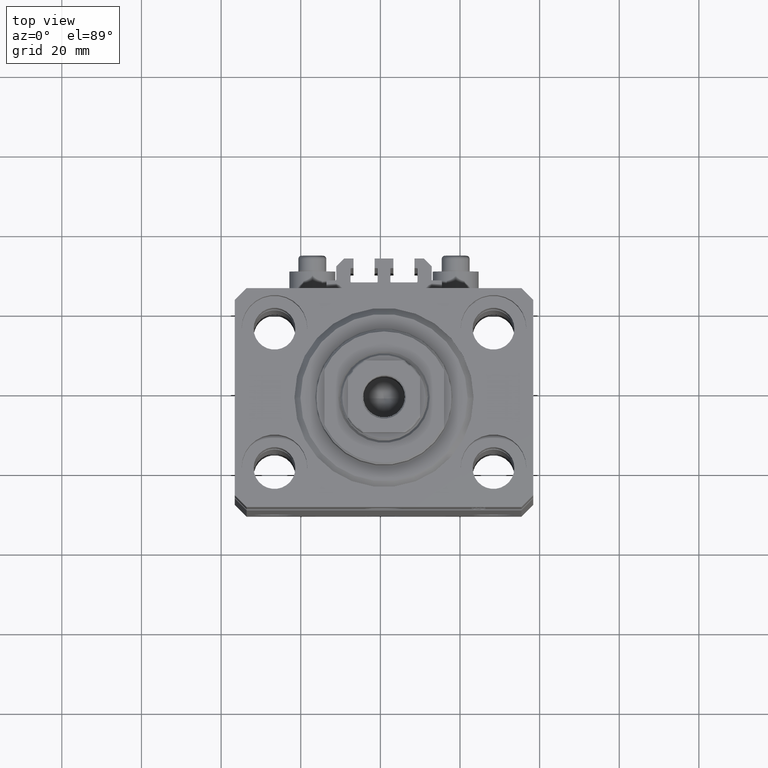
[diagram: clean part render]
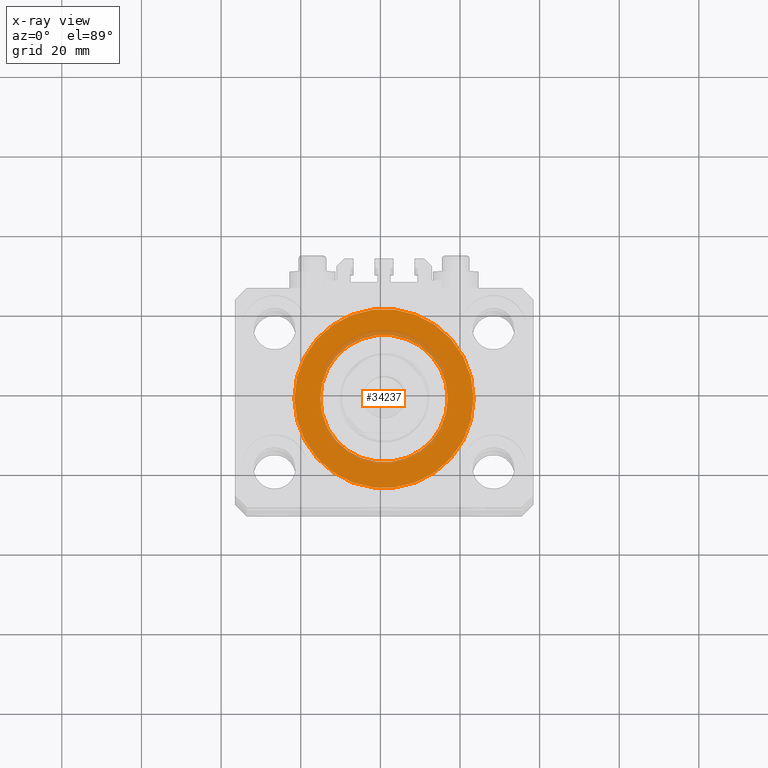
[diagram: x-ray — body ghosted, one internal face saturated and labeled with its STEP entity id]
A machine part, top view, then the same camera in x-ray: the body is ghosted and one INTERNAL B-rep face — a face not visible from any outside direction — is saturated and labeled: STEP entity #34237.
In plain terms, the highlighted planar face has unit normal (0, 0, 1).
Its self-contained STEP definition (entity closure, byte-faithful):
#670 = DIRECTION ( 'NONE',  ( 0.000000000000000000, 0.000000000000000000, 1.000000000000000000 ) ) ;
#754 = EDGE_LOOP ( 'NONE', ( #16422, #46451 ) ) ;
#4380 = DIRECTION ( 'NONE',  ( 1.000000000000000000, 0.000000000000000000, 0.000000000000000000 ) ) ;
#4820 = EDGE_CURVE ( 'NONE', #14405, #17520, #25121, .T. ) ;
#5246 = AXIS2_PLACEMENT_3D ( 'NONE', #24243, #20821, #17903 ) ;
#5517 = AXIS2_PLACEMENT_3D ( 'NONE', #33838, #670, #7443 ) ;
#5641 = EDGE_CURVE ( 'NONE', #17070, #6824, #45244, .T. ) ;
#6824 = VERTEX_POINT ( 'NONE', #47864 ) ;
#7443 = DIRECTION ( 'NONE',  ( 1.000000000000000000, 0.000000000000000000, -0.000000000000000000 ) ) ;
#8394 = DIRECTION ( 'NONE',  ( 0.000000000000000000, 0.000000000000000000, 1.000000000000000000 ) ) ;
#9733 = CIRCLE ( 'NONE', #25988, 16.00000000000000000 ) ;
#11560 = FACE_OUTER_BOUND ( 'NONE', #754, .T. ) ;
#14405 = VERTEX_POINT ( 'NONE', #30422 ) ;
#14423 = EDGE_CURVE ( 'NONE', #6824, #17070, #9733, .T. ) ;
#15065 = AXIS2_PLACEMENT_3D ( 'NONE', #44916, #37651, #26993 ) ;
#16422 = ORIENTED_EDGE ( 'NONE', *, *, #4820, .T. ) ;
#16866 = CIRCLE ( 'NONE', #5246, 22.50000000000000355 ) ;
#17070 = VERTEX_POINT ( 'NONE', #23851 ) ;
#17520 = VERTEX_POINT ( 'NONE', #47476 ) ;
#17903 = DIRECTION ( 'NONE',  ( 1.000000000000000000, 0.000000000000000000, 0.000000000000000000 ) ) ;
#20821 = DIRECTION ( 'NONE',  ( 0.000000000000000000, 0.000000000000000000, 1.000000000000000000 ) ) ;
#21273 = AXIS2_PLACEMENT_3D ( 'NONE', #33430, #45299, #4380 ) ;
#21990 = EDGE_CURVE ( 'NONE', #17520, #14405, #16866, .T. ) ;
#23007 = EDGE_LOOP ( 'NONE', ( #41056, #43220 ) ) ;
#23851 = CARTESIAN_POINT ( 'NONE',  ( 16.00000000000000000, 0.000000000000000000, -15.00000000000000000 ) ) ;
#24243 = CARTESIAN_POINT ( 'NONE',  ( 0.000000000000000000, 0.000000000000000000, -15.00000000000000000 ) ) ;
#25121 = CIRCLE ( 'NONE', #15065, 22.50000000000000355 ) ;
#25988 = AXIS2_PLACEMENT_3D ( 'NONE', #38182, #8394, #31144 ) ;
#26993 = DIRECTION ( 'NONE',  ( 1.000000000000000000, 0.000000000000000000, 0.000000000000000000 ) ) ;
#30422 = CARTESIAN_POINT ( 'NONE',  ( 22.50000000000000355, 0.000000000000000000, -15.00000000000000000 ) ) ;
#31144 = DIRECTION ( 'NONE',  ( 1.000000000000000000, 0.000000000000000000, 0.000000000000000000 ) ) ;
#33430 = CARTESIAN_POINT ( 'NONE',  ( 0.000000000000000000, 0.000000000000000000, -15.00000000000000000 ) ) ;
#33838 = CARTESIAN_POINT ( 'NONE',  ( 0.000000000000000000, 0.000000000000000000, -15.00000000000000000 ) ) ;
#34237 = ADVANCED_FACE ( 'NONE', ( #40858, #11560 ), #37721, .T. ) ;
#37651 = DIRECTION ( 'NONE',  ( 0.000000000000000000, 0.000000000000000000, 1.000000000000000000 ) ) ;
#37721 = PLANE ( 'NONE',  #5517 ) ;
#38182 = CARTESIAN_POINT ( 'NONE',  ( 0.000000000000000000, 0.000000000000000000, -15.00000000000000000 ) ) ;
#40858 = FACE_BOUND ( 'NONE', #23007, .T. ) ;
#41056 = ORIENTED_EDGE ( 'NONE', *, *, #5641, .F. ) ;
#43220 = ORIENTED_EDGE ( 'NONE', *, *, #14423, .F. ) ;
#44916 = CARTESIAN_POINT ( 'NONE',  ( 0.000000000000000000, 0.000000000000000000, -15.00000000000000000 ) ) ;
#45244 = CIRCLE ( 'NONE', #21273, 16.00000000000000000 ) ;
#45299 = DIRECTION ( 'NONE',  ( 0.000000000000000000, 0.000000000000000000, 1.000000000000000000 ) ) ;
#46451 = ORIENTED_EDGE ( 'NONE', *, *, #21990, .T. ) ;
#47476 = CARTESIAN_POINT ( 'NONE',  ( -22.50000000000000355, 2.755455298081545172E-15, -15.00000000000000000 ) ) ;
#47864 = CARTESIAN_POINT ( 'NONE',  ( -16.00000000000000000, 1.959434878635765131E-15, -15.00000000000000000 ) ) ;